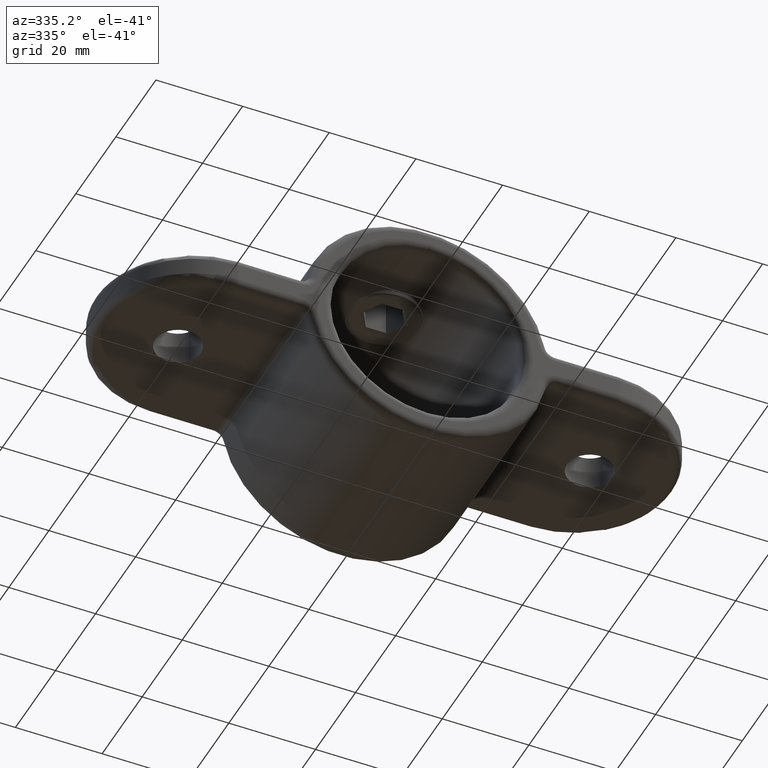
[diagram: clean part render]
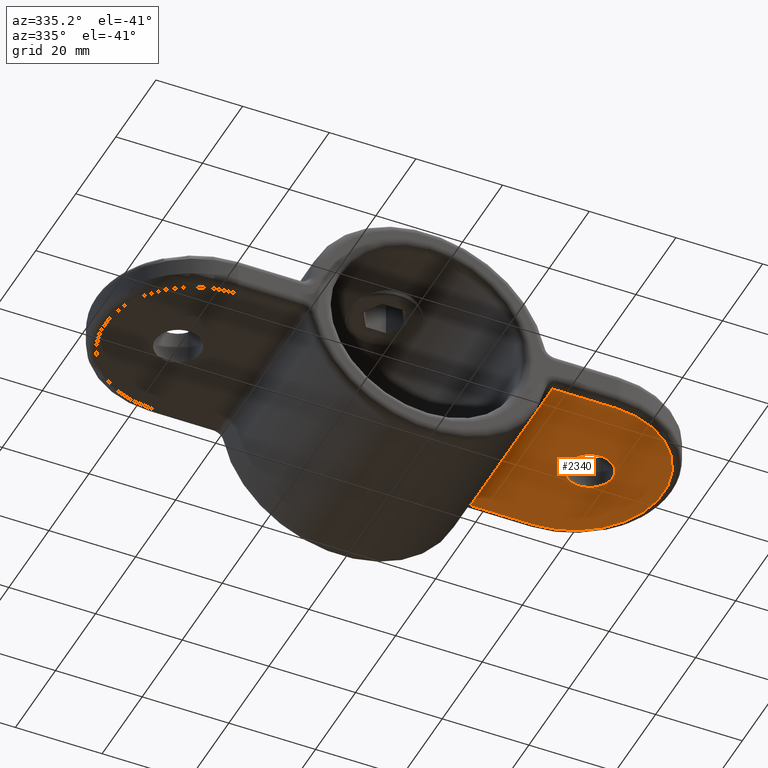
[diagram: same view with one face highlighted and labeled with its STEP entity id]
A machine part, auxiliary view. The second image highlights one B-rep face of the part: STEP entity #2340.
In plain terms, the highlighted planar face has unit normal (0, 0, 1).
Its self-contained STEP definition (entity closure, byte-faithful):
#22 = EDGE_CURVE ( 'NONE', #1858, #1858, #155, .T. ) ;
#57 = CARTESIAN_POINT ( 'NONE',  ( 47.49999999999999289, 22.50000000000000355, -4.000000000000000000 ) ) ;
#66 = ORIENTED_EDGE ( 'NONE', *, *, #2701, .T. ) ;
#140 = DIRECTION ( 'NONE',  ( 1.000000000000000000, 0.000000000000000000, 0.000000000000000000 ) ) ;
#155 = CIRCLE ( 'NONE', #660, 5.249999999999997335 ) ;
#158 = AXIS2_PLACEMENT_3D ( 'NONE', #483, #2022, #1574 ) ;
#180 = VECTOR ( 'NONE', #1031, 1000.000000000000000 ) ;
#201 = CARTESIAN_POINT ( 'NONE',  ( 52.74999999999999289, 22.50000000000000355, -4.000000000000000000 ) ) ;
#206 = EDGE_CURVE ( 'NONE', #1051, #2522, #1413, .T. ) ;
#340 = DIRECTION ( 'NONE',  ( 1.000000000000000000, -0.000000000000000000, -0.000000000000000000 ) ) ;
#483 = CARTESIAN_POINT ( 'NONE',  ( 44.00000000000001421, 22.50000000000000000, -4.000000000000000000 ) ) ;
#567 = DIRECTION ( 'NONE',  ( 0.000000000000000000, 1.000000000000000000, -0.000000000000000000 ) ) ;
#660 = AXIS2_PLACEMENT_3D ( 'NONE', #57, #1590, #2485 ) ;
#725 = VERTEX_POINT ( 'NONE', #831 ) ;
#761 = CIRCLE ( 'NONE', #1238, 20.49999999999998934 ) ;
#815 = CARTESIAN_POINT ( 'NONE',  ( 44.00000000000001421, 2.000000000000001776, -4.000000000000000000 ) ) ;
#831 = CARTESIAN_POINT ( 'NONE',  ( 44.00000000000000711, 2.000000000000000000, -4.000000000000000000 ) ) ;
#946 = CARTESIAN_POINT ( 'NONE',  ( 44.00000000000001421, 43.00000000000000000, -4.000000000000000000 ) ) ;
#1031 = DIRECTION ( 'NONE',  ( -1.000000000000000000, -0.000000000000000000, 0.000000000000000000 ) ) ;
#1048 = LINE ( 'NONE', #815, #180 ) ;
#1051 = VERTEX_POINT ( 'NONE', #2099 ) ;
#1220 = ORIENTED_EDGE ( 'NONE', *, *, #206, .T. ) ;
#1238 = AXIS2_PLACEMENT_3D ( 'NONE', #1454, #2361, #140 ) ;
#1250 = ORIENTED_EDGE ( 'NONE', *, *, #22, .T. ) ;
#1271 = EDGE_LOOP ( 'NONE', ( #1679, #1536, #66, #1220 ) ) ;
#1413 = LINE ( 'NONE', #2304, #2779 ) ;
#1454 = CARTESIAN_POINT ( 'NONE',  ( 44.00000000000001421, 22.50000000000000000, -4.000000000000000000 ) ) ;
#1536 = ORIENTED_EDGE ( 'NONE', *, *, #2251, .T. ) ;
#1541 = FACE_BOUND ( 'NONE', #2802, .T. ) ;
#1574 = DIRECTION ( 'NONE',  ( 1.000000000000000000, 0.000000000000000000, -0.000000000000000000 ) ) ;
#1590 = DIRECTION ( 'NONE',  ( 0.000000000000000000, 0.000000000000000000, 1.000000000000000000 ) ) ;
#1679 = ORIENTED_EDGE ( 'NONE', *, *, #1732, .T. ) ;
#1732 = EDGE_CURVE ( 'NONE', #2522, #725, #761, .T. ) ;
#1858 = VERTEX_POINT ( 'NONE', #201 ) ;
#1892 = VECTOR ( 'NONE', #567, 1000.000000000000000 ) ;
#2022 = DIRECTION ( 'NONE',  ( 0.000000000000000000, 0.000000000000000000, 1.000000000000000000 ) ) ;
#2099 = CARTESIAN_POINT ( 'NONE',  ( 29.39387691339813458, 43.00000000000000000, -4.000000000000000000 ) ) ;
#2202 = VERTEX_POINT ( 'NONE', #2346 ) ;
#2204 = LINE ( 'NONE', #2797, #1892 ) ;
#2251 = EDGE_CURVE ( 'NONE', #725, #2202, #1048, .T. ) ;
#2304 = CARTESIAN_POINT ( 'NONE',  ( 44.00000000000001421, 43.00000000000000000, -4.000000000000000000 ) ) ;
#2340 = ADVANCED_FACE ( 'NONE', ( #2518, #1541 ), #2458, .F. ) ;
#2346 = CARTESIAN_POINT ( 'NONE',  ( 29.39387691339813458, 2.000000000000000000, -4.000000000000000000 ) ) ;
#2361 = DIRECTION ( 'NONE',  ( -0.000000000000000000, -0.000000000000000000, -1.000000000000000000 ) ) ;
#2458 = PLANE ( 'NONE',  #158 ) ;
#2485 = DIRECTION ( 'NONE',  ( 1.000000000000000000, 0.000000000000000000, 0.000000000000000000 ) ) ;
#2518 = FACE_OUTER_BOUND ( 'NONE', #1271, .T. ) ;
#2522 = VERTEX_POINT ( 'NONE', #946 ) ;
#2701 = EDGE_CURVE ( 'NONE', #2202, #1051, #2204, .T. ) ;
#2779 = VECTOR ( 'NONE', #340, 1000.000000000000000 ) ;
#2797 = CARTESIAN_POINT ( 'NONE',  ( 29.39387691339813458, 45.00000000000000000, -4.000000000000000000 ) ) ;
#2802 = EDGE_LOOP ( 'NONE', ( #1250 ) ) ;